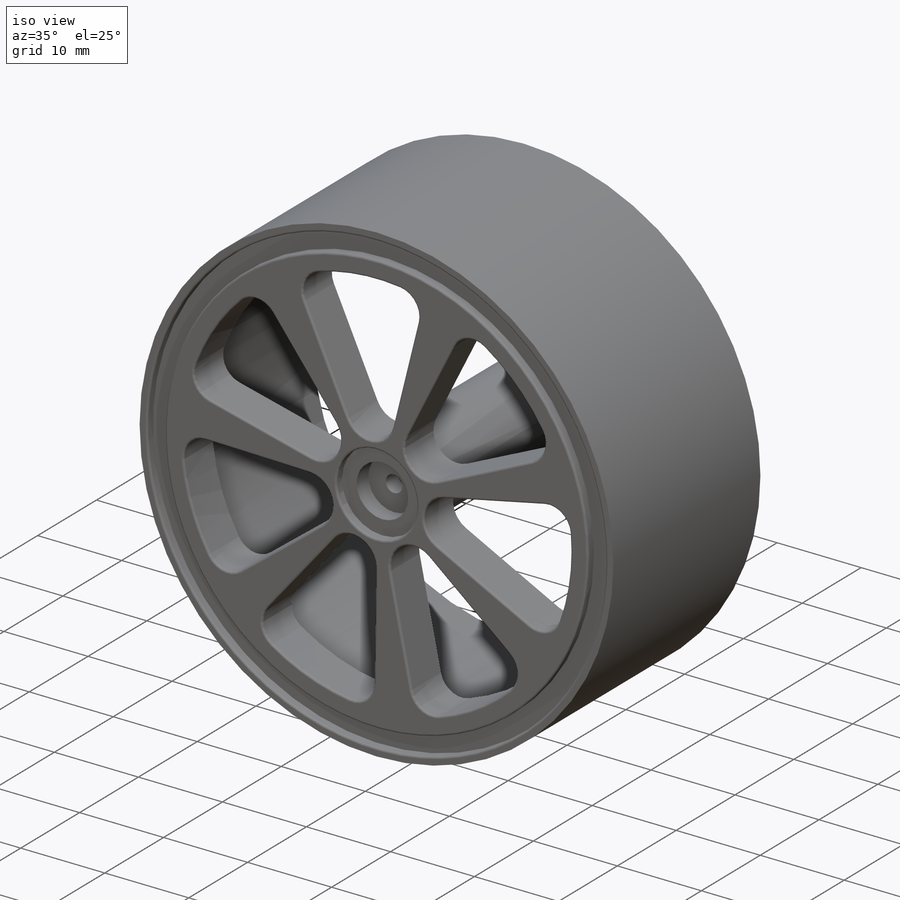
[diagram: iso view]
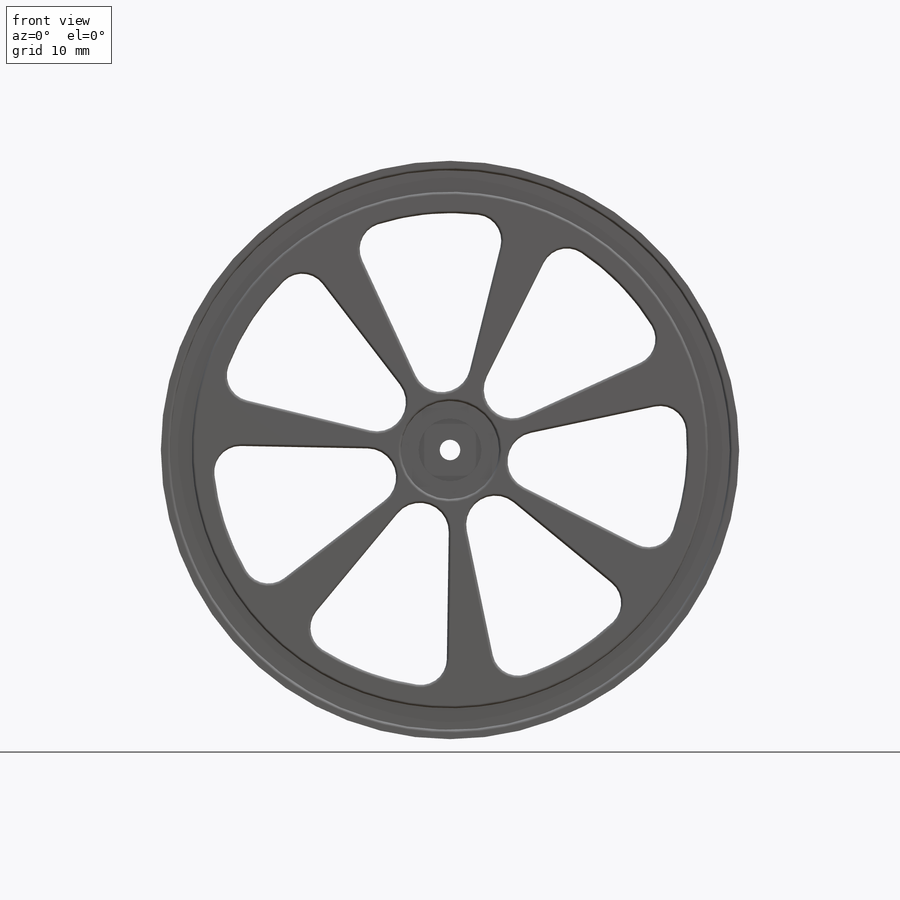
[diagram: front view]
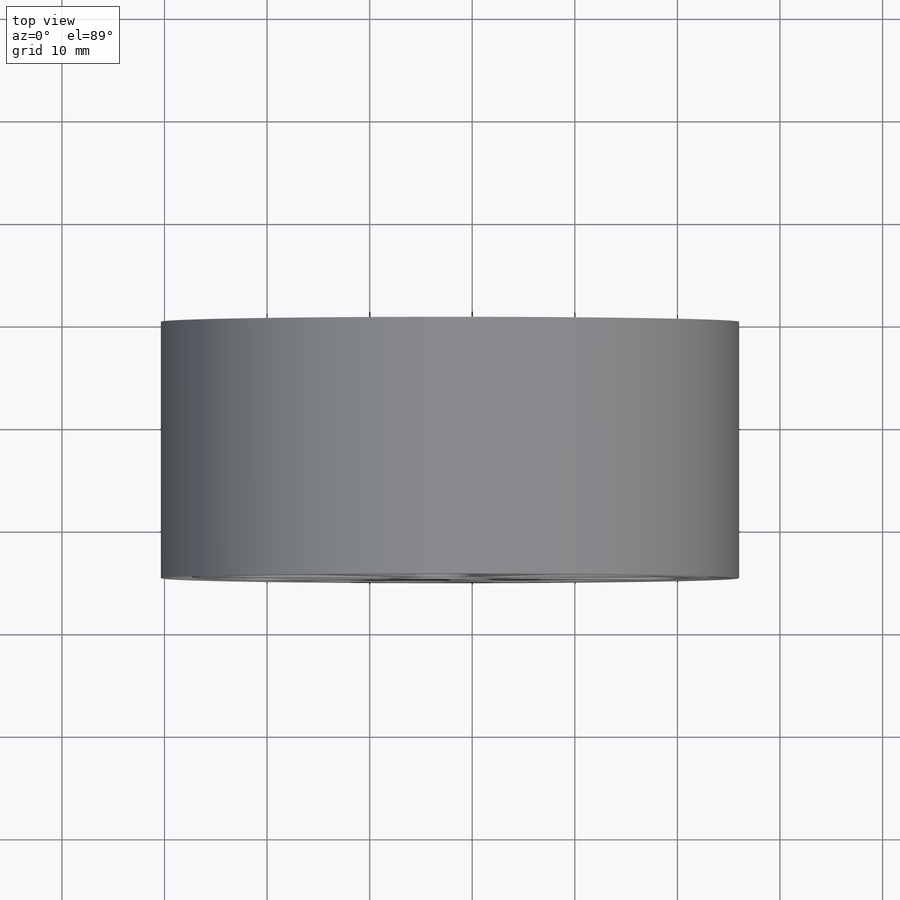
[diagram: top view]
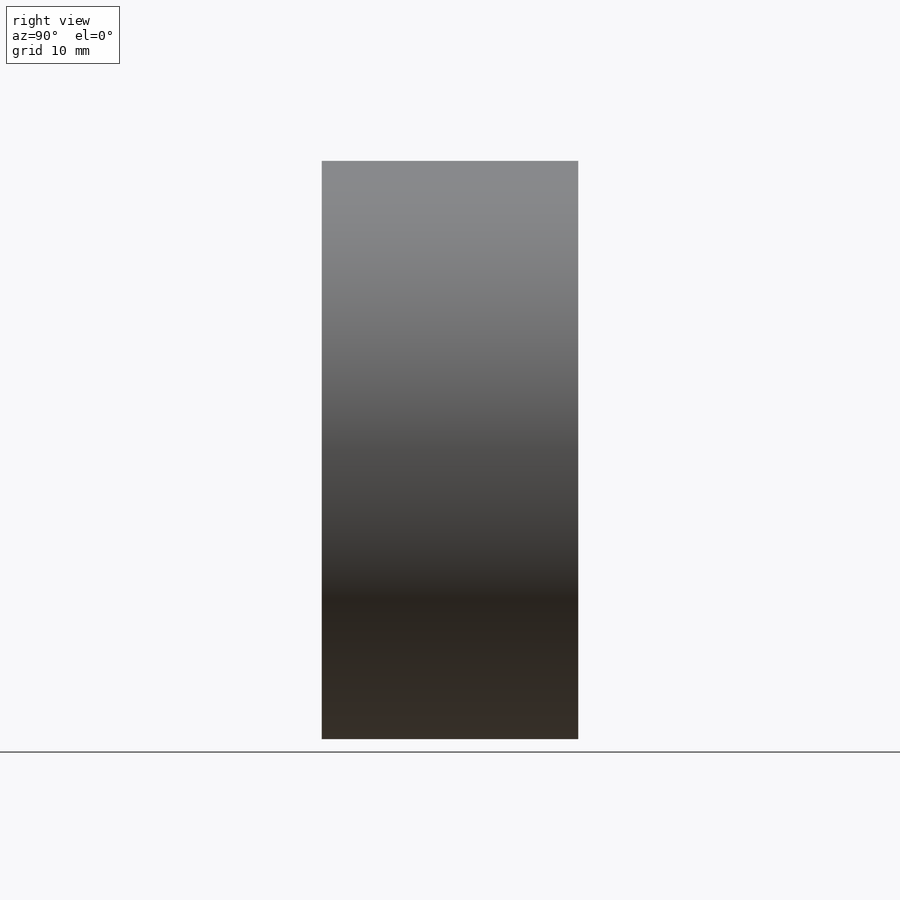
[diagram: right view]
SOLIDWORKS PART (.sldprt)
format: sldprt  version: not decoded by parser v0  size: 657,920 bytes
history: native  units: mm
features: fillet x10, sketch x9, cut_extrude x6, plane x3, extrude x3, material x1 (+10 scaffold rows collapsed)
feature tree (42):
  scaffold x10  (default folders/planes/origin — collapsed)
  material  "3.0517 (EN-AW 3003)"
  plane  "前视基准面"
  plane  "上视基准面"
  plane  "右视基准面"
  sketch  "Model"  dims[D1=2.0mm D2=10.0mm]
  extrude  "凸台-拉伸1"  Depth=20mm
  sketch  "草图2"  dims[D1=66.0mm]
  extrude  "凸台-拉伸2"  Depth=5mm
  sketch  "草图3"  dims[c1.D1=1270.0mm c1.D2=66.0mm c2.D1=50.0mm]
  extrude  "凸台-拉伸3"  [1 undecoded]
  sketch  "草图4"
  cut_extrude  "切除-拉伸1"  Depth=25mm
  sketch  "草图5"
  cut_extrude  "切除-拉伸3"  Depth=3mm
  sketch  "草图6"
  cut_extrude  "切除-拉伸4"  Depth=1mm
  sketch  "草图7"  dims[D1=2.0mm]
  cut_extrude  "切除-拉伸5"  Depth=40mm
  sketch  "草图8"  dims[D1=2.54mm D2=7.0]
  cut_extrude  "切除-拉伸6"  Depth=40mm
  fillet  "圆角1"  Radius=0.25mm
  fillet  "圆角3"  Radius=0.25mm
  fillet  "圆角4"  Radius=0.25mm
  fillet  "圆角5"  Radius=0.25mm
  fillet  "圆角6"  Radius=0.25mm
  fillet  "圆角7"  Radius=0.25mm
  fillet  "圆角8"  Radius=0.25mm
  fillet  "圆角9"  Radius=0.25mm
  sketch  "草图9"
  cut_extrude  "切除-拉伸7"  Depth=1mm
  fillet  "圆角10"  Radius=0.25mm
  fillet  "圆角11"  Radius=0.25mm
decode coverage: 23 of 28 modeling features carry decoded parameters
note: 1 parameter value undecoded
note: suppression state not decoded; provenance and decode notes live in map.json
